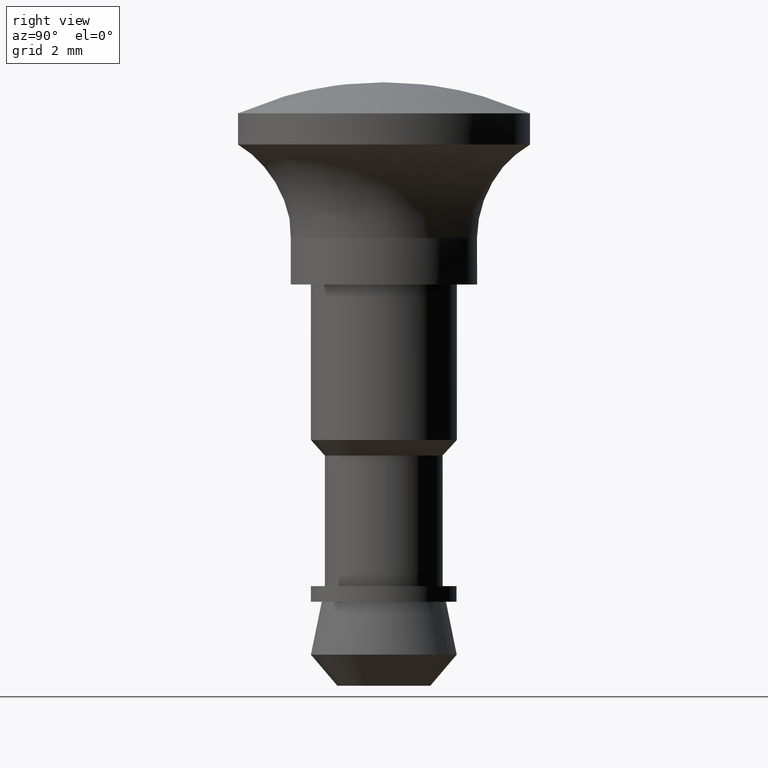
[diagram: clean part render]
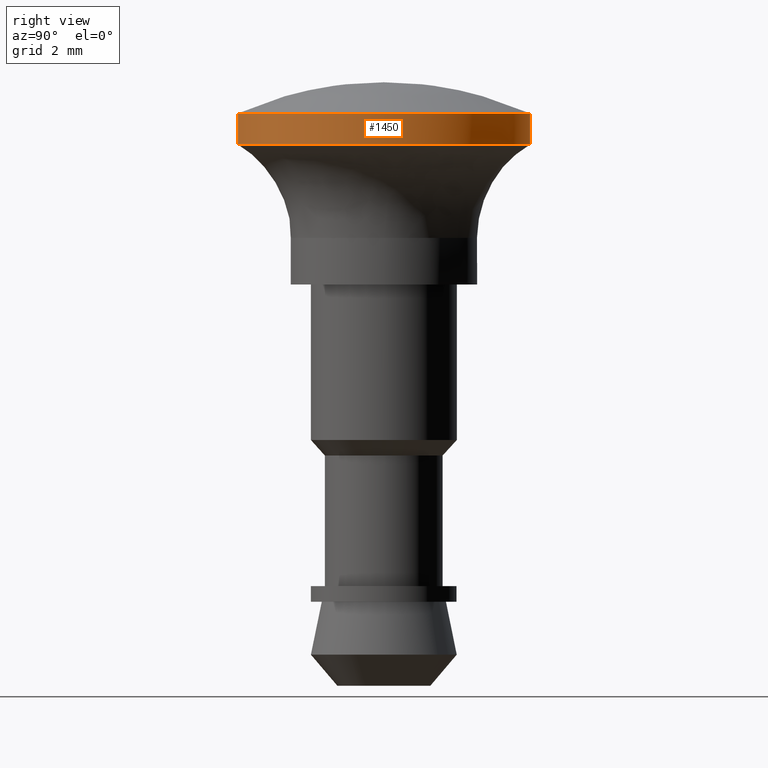
[diagram: same view with one face highlighted and labeled with its STEP entity id]
A machine part, right view. The second image highlights one B-rep face of the part: STEP entity #1450.
In plain terms, the highlighted face is a freeform B-spline surface patch.
Its self-contained STEP definition (entity closure, byte-faithful):
#1284=CARTESIAN_POINT('',(-4.399878544117155,-1.652605878334514,5.525004811307536));
#1285=CARTESIAN_POINT('',(-4.648134824996451,-0.991651262353149,5.525004811307537));
#1286=CARTESIAN_POINT('',(-4.691237523043276,-0.286928378657595,5.525004811307537));
#1287=CARTESIAN_POINT('',(-4.978165901700871,4.404309144385681,5.525004811307537));
#1288=CARTESIAN_POINT('',(-0.286928378657595,4.691237523043276,5.525004811307537));
#1289=CARTESIAN_POINT('',(4.404309144385681,4.978165901700871,5.525004811307537));
#1290=CARTESIAN_POINT('',(4.691237523043276,0.286928378657595,5.525004811307537));
#1291=CARTESIAN_POINT('',(4.978165901700871,-4.404309144385681,5.525004811307537));
#1292=CARTESIAN_POINT('',(0.286928378657595,-4.691237523043276,5.525004811307537));
#1293=CARTESIAN_POINT('',(-4.399878544117155,-1.652605878334514,4.474028597294021));
#1294=CARTESIAN_POINT('',(-4.648134824996451,-0.991651262353149,4.474028597294021));
#1295=CARTESIAN_POINT('',(-4.691237523043276,-0.286928378657595,4.474028597294022));
#1296=CARTESIAN_POINT('',(-4.978165901700871,4.404309144385681,4.474028597294021));
#1297=CARTESIAN_POINT('',(-0.286928378657595,4.691237523043276,4.474028597294022));
#1298=CARTESIAN_POINT('',(4.404309144385681,4.978165901700871,4.474028597294021));
#1299=CARTESIAN_POINT('',(4.691237523043276,0.286928378657595,4.474028597294022));
#1300=CARTESIAN_POINT('',(4.978165901700871,-4.404309144385681,4.474028597294021));
#1301=CARTESIAN_POINT('',(0.286928378657595,-4.691237523043276,4.474028597294022));
#1309=(BOUNDED_SURFACE()B_SPLINE_SURFACE(2,1,((#1284,#1293),(#1285,#1294),(#1286,#1295),(#1287,#1296),(#1288,#1297),(#1289,#1298),(#1290,#1299),(#1291,#1300),(#1292,#1301)),.UNSPECIFIED.,.F.,.F.,.U.)B_SPLINE_SURFACE_WITH_KNOTS((3,2,2,2,3),(2,2),(0.0,1.557444312676330,9.344665876057979,17.131887439439630,24.919109002821280),(0.0,1.0),.UNSPECIFIED.)GEOMETRIC_REPRESENTATION_ITEM()RATIONAL_B_SPLINE_SURFACE(((0.906274169979695,0.906274169979695),(0.941421356237309,0.941421356237309),(1.0,1.0),(0.707106781186548,0.707106781186548),(1.0,1.0),(0.707106781186548,0.707106781186548),(1.0,1.0),(0.707106781186548,0.707106781186548),(1.0,1.0)))REPRESENTATION_ITEM('')SURFACE());
#1310=CARTESIAN_POINT('',(-4.399878107368780,-1.652601384581499,4.499666203920985));
#1311=VERTEX_POINT('',#1310);
#1312=CARTESIAN_POINT('',(-4.700000000000000,0.0,4.499666203960731));
#1313=VERTEX_POINT('',#1312);
#1314=CARTESIAN_POINT('',(-4.399878107368779,-1.652601384581500,4.499666203920985));
#1315=CARTESIAN_POINT('',(-4.700000930966199,-0.853552970732249,4.499666203940858));
#1316=CARTESIAN_POINT('',(-4.700000000000000,0.0,4.499666203960731));
#1324=(BOUNDED_CURVE()B_SPLINE_CURVE(2,(#1314,#1315,#1316),.UNSPECIFIED.,.F.,.U.)B_SPLINE_CURVE_WITH_KNOTS((3,3),(0.940284307113158,1.0),.UNSPECIFIED.)CURVE()GEOMETRIC_REPRESENTATION_ITEM()RATIONAL_B_SPLINE_CURVE((0.893499721329846,0.930038713986789,1.0))REPRESENTATION_ITEM(''));
#1325=EDGE_CURVE('',#1311,#1313,#1324,.T.);
#1326=ORIENTED_EDGE('',*,*,#1325,.F.);
#1327=CARTESIAN_POINT('',(-4.399881813166960,-1.652602831381717,5.499996454043682));
#1328=VERTEX_POINT('',#1327);
#1329=CARTESIAN_POINT('',(-4.399881813166960,-1.652602831381717,5.499996454043682));
#1330=CARTESIAN_POINT('',(-4.399878107368780,-1.652601384581499,4.499666203920985));
#1331=QUASI_UNIFORM_CURVE('',1,(#1329,#1330),.UNSPECIFIED.,.F.,.U.);
#1332=EDGE_CURVE('',#1328,#1311,#1331,.T.);
#1333=ORIENTED_EDGE('',*,*,#1332,.F.);
#1334=CARTESIAN_POINT('',(-4.700007955760090,0.0,5.499996454043680));
#1335=VERTEX_POINT('',#1334);
#1336=CARTESIAN_POINT('',(-4.399881813166959,-1.652602831381717,5.499996454043682));
#1337=CARTESIAN_POINT('',(-4.700007024792281,-0.853553742750973,5.499996454043681));
#1338=CARTESIAN_POINT('',(-4.700007955760090,0.0,5.499996454043680));
#1346=(BOUNDED_CURVE()B_SPLINE_CURVE(2,(#1336,#1337,#1338),.UNSPECIFIED.,.F.,.U.)B_SPLINE_CURVE_WITH_KNOTS((3,3),(0.940284305386098,1.0),.UNSPECIFIED.)CURVE()GEOMETRIC_REPRESENTATION_ITEM()RATIONAL_B_SPLINE_CURVE((0.893499719216330,0.930038711963413,1.0))REPRESENTATION_ITEM(''));
#1347=EDGE_CURVE('',#1328,#1335,#1346,.T.);
#1348=ORIENTED_EDGE('',*,*,#1347,.T.);
#1349=CARTESIAN_POINT('',(4.700007955760090,0.0,5.499996454043680));
#1350=VERTEX_POINT('',#1349);
#1351=CARTESIAN_POINT('',(-4.700007955760090,0.0,5.499996454043680));
#1352=CARTESIAN_POINT('',(-4.700007955760091,4.700007955760091,5.499996454043679));
#1353=CARTESIAN_POINT('',(0.0,4.700007955760090,5.499996454043680));
#1354=CARTESIAN_POINT('',(4.700007955760091,4.700007955760091,5.499996454043679));
#1355=CARTESIAN_POINT('',(4.700007955760090,0.0,5.499996454043680));
#1363=(BOUNDED_CURVE()B_SPLINE_CURVE(2,(#1351,#1352,#1353,#1354,#1355),.UNSPECIFIED.,.F.,.U.)B_SPLINE_CURVE_WITH_KNOTS((3,2,3),(0.0,0.250000000000000,0.500000000000000),.UNSPECIFIED.)CURVE()GEOMETRIC_REPRESENTATION_ITEM()RATIONAL_B_SPLINE_CURVE((1.0,0.707106781186548,1.0,0.707106781186548,1.0))REPRESENTATION_ITEM(''));
#1364=EDGE_CURVE('',#1335,#1350,#1363,.T.);
#1365=ORIENTED_EDGE('',*,*,#1364,.T.);
#1366=CARTESIAN_POINT('',(0.286922604925091,-4.691239868829175,5.499996454043680));
#1367=VERTEX_POINT('',#1366);
#1368=CARTESIAN_POINT('',(4.700007955760090,0.0,5.499996454043680));
#1369=CARTESIAN_POINT('',(4.700007895050281,-4.421330572229587,5.499996454043682));
#1370=CARTESIAN_POINT('',(0.286922604925091,-4.691239868829175,5.499996454043680));
#1378=(BOUNDED_CURVE()B_SPLINE_CURVE(2,(#1368,#1369,#1370),.UNSPECIFIED.,.F.,.U.)B_SPLINE_CURVE_WITH_KNOTS((3,3),(0.500000000000000,0.739333179069552),.UNSPECIFIED.)CURVE()GEOMETRIC_REPRESENTATION_ITEM()RATIONAL_B_SPLINE_CURVE((1.0,0.719603739253850,0.976072506376430))REPRESENTATION_ITEM(''));
#1379=EDGE_CURVE('',#1350,#1367,#1378,.T.);
#1380=ORIENTED_EDGE('',*,*,#1379,.T.);
#1381=CARTESIAN_POINT('',(0.286922287763427,-4.691235902913967,4.499666203926619));
#1382=VERTEX_POINT('',#1381);
#1383=CARTESIAN_POINT('',(0.286922604925091,-4.691239868829175,5.499996454043680));
#1384=CARTESIAN_POINT('',(0.286922287763427,-4.691235902913967,4.499666203926619));
#1385=QUASI_UNIFORM_CURVE('',1,(#1383,#1384),.UNSPECIFIED.,.F.,.U.);
#1386=EDGE_CURVE('',#1367,#1382,#1385,.T.);
#1387=ORIENTED_EDGE('',*,*,#1386,.T.);
#1388=CARTESIAN_POINT('',(4.700000000000000,0.0,4.499666203960731));
#1389=VERTEX_POINT('',#1388);
#1390=CARTESIAN_POINT('',(4.700000000000000,0.0,4.499666203960731));
#1391=CARTESIAN_POINT('',(4.700000060709562,-4.421325143596317,4.499666203943675));
#1392=CARTESIAN_POINT('',(0.286922287763427,-4.691235902913967,4.499666203926619));
#1400=(BOUNDED_CURVE()B_SPLINE_CURVE(2,(#1390,#1391,#1392),.UNSPECIFIED.,.F.,.U.)B_SPLINE_CURVE_WITH_KNOTS((3,3),(0.500000000000000,0.739333181803199),.UNSPECIFIED.)CURVE()GEOMETRIC_REPRESENTATION_ITEM()RATIONAL_B_SPLINE_CURVE((1.0,0.719603736051183,0.976072512235166))REPRESENTATION_ITEM(''));
#1401=EDGE_CURVE('',#1389,#1382,#1400,.T.);
#1402=ORIENTED_EDGE('',*,*,#1401,.F.);
#1403=CARTESIAN_POINT('',(2.883163764809257,3.711779003359970,4.499662163489473));
#1404=VERTEX_POINT('',#1403);
#1405=CARTESIAN_POINT('',(2.883163764809257,3.711779003359971,4.499662163489474));
#1406=CARTESIAN_POINT('',(4.699997933374476,2.300538031613682,4.499664183725104));
#1407=CARTESIAN_POINT('',(4.700000000000000,0.0,4.499666203960731));
#1415=(BOUNDED_CURVE()B_SPLINE_CURVE(2,(#1405,#1406,#1407),.UNSPECIFIED.,.F.,.U.)B_SPLINE_CURVE_WITH_KNOTS((3,3),(0.356116014561318,0.500000000000000),.UNSPECIFIED.)CURVE()GEOMETRIC_REPRESENTATION_ITEM()RATIONAL_B_SPLINE_CURVE((0.856895699674143,0.831429425476626,1.0))REPRESENTATION_ITEM(''));
#1416=EDGE_CURVE('',#1404,#1389,#1415,.T.);
#1417=ORIENTED_EDGE('',*,*,#1416,.F.);
#1418=CARTESIAN_POINT('',(-3.870603208739954,2.666164060844125,4.499666203887038));
#1419=VERTEX_POINT('',#1418);
#1420=CARTESIAN_POINT('',(-3.870603208739955,2.666164060844125,4.499666203887037));
#1421=CARTESIAN_POINT('',(-2.469649397500553,4.699998679713358,4.499665201429393));
#1422=CARTESIAN_POINT('',(-0.000002501485097,4.699996779513553,4.499663758563556));
#1423=CARTESIAN_POINT('',(1.610937639043539,4.699995540021322,4.499662817388322));
#1424=CARTESIAN_POINT('',(2.883163764809257,3.711779003359971,4.499662163489474));
#1432=(BOUNDED_CURVE()B_SPLINE_CURVE(2,(#1420,#1421,#1422,#1423,#1424),.UNSPECIFIED.,.F.,.U.)B_SPLINE_CURVE_WITH_KNOTS((3,2,3),(0.097429953509399,0.250000000000000,0.356116014561318),.UNSPECIFIED.)CURVE()GEOMETRIC_REPRESENTATION_ITEM()RATIONAL_B_SPLINE_CURVE((0.860677560885333,0.821253071955399,1.0,0.875677355709921,0.856895699674143))REPRESENTATION_ITEM(''));
#1433=EDGE_CURVE('',#1419,#1404,#1432,.T.);
#1434=ORIENTED_EDGE('',*,*,#1433,.F.);
#1435=CARTESIAN_POINT('',(-4.700000000000000,0.0,4.499666203960731));
#1436=CARTESIAN_POINT('',(-4.700000000000000,1.462087414509130,4.499666203960730));
#1437=CARTESIAN_POINT('',(-3.870603208739955,2.666164060844125,4.499666203887037));
#1445=(BOUNDED_CURVE()B_SPLINE_CURVE(2,(#1435,#1436,#1437),.UNSPECIFIED.,.F.,.U.)B_SPLINE_CURVE_WITH_KNOTS((3,3),(0.0,0.097429953509399),.UNSPECIFIED.)CURVE()GEOMETRIC_REPRESENTATION_ITEM()RATIONAL_B_SPLINE_CURVE((1.0,0.885853709231149,0.860677560885333))REPRESENTATION_ITEM(''));
#1446=EDGE_CURVE('',#1313,#1419,#1445,.T.);
#1447=ORIENTED_EDGE('',*,*,#1446,.F.);
#1448=EDGE_LOOP('',(#1326,#1333,#1348,#1365,#1380,#1387,#1402,#1417,#1434,#1447));
#1449=FACE_OUTER_BOUND('',#1448,.T.);
#1450=ADVANCED_FACE('',(#1449),#1309,.T.);